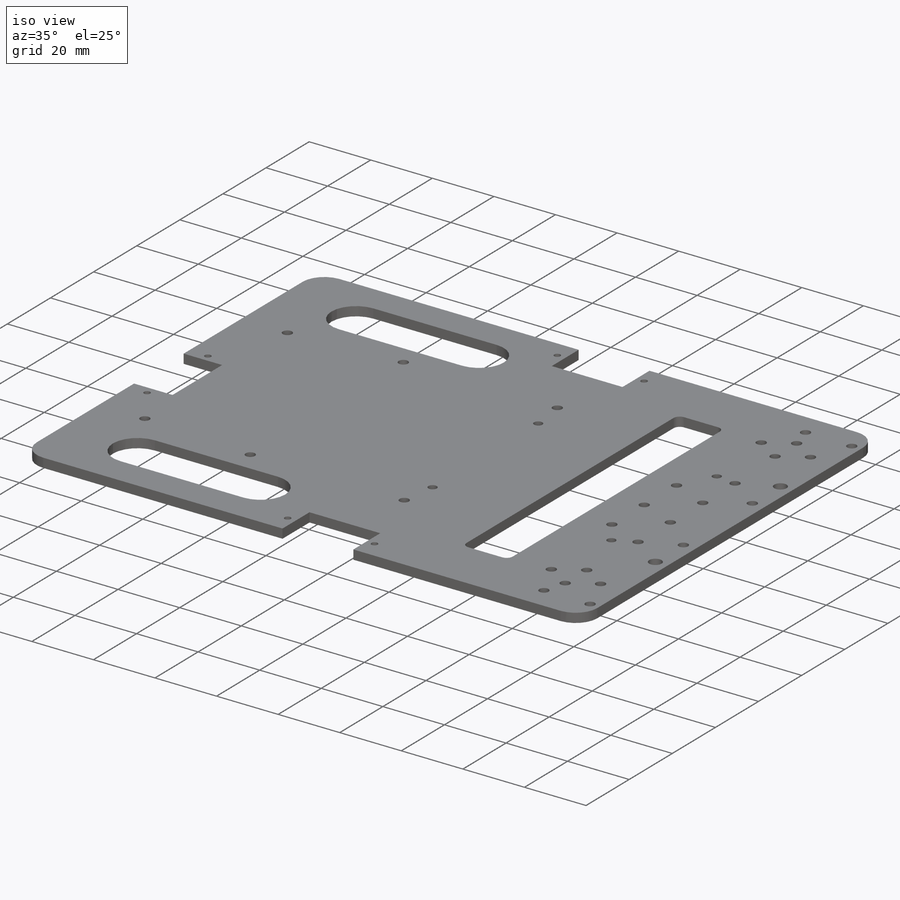
[diagram: iso view]
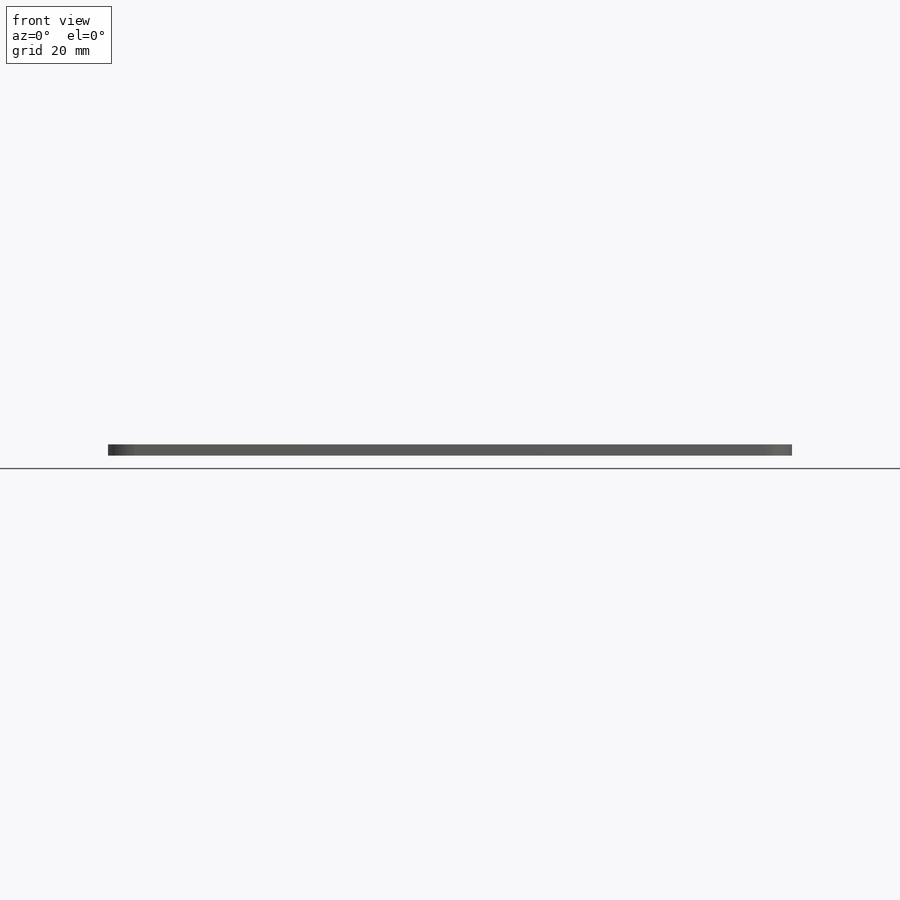
[diagram: front view]
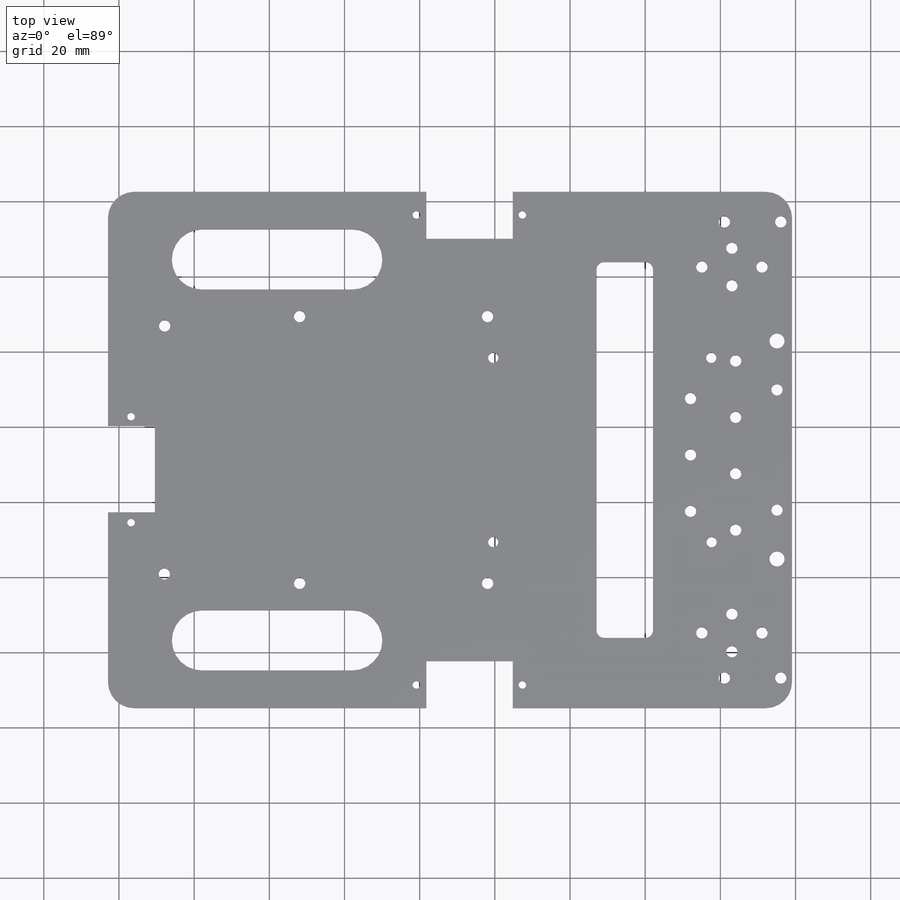
[diagram: top view]
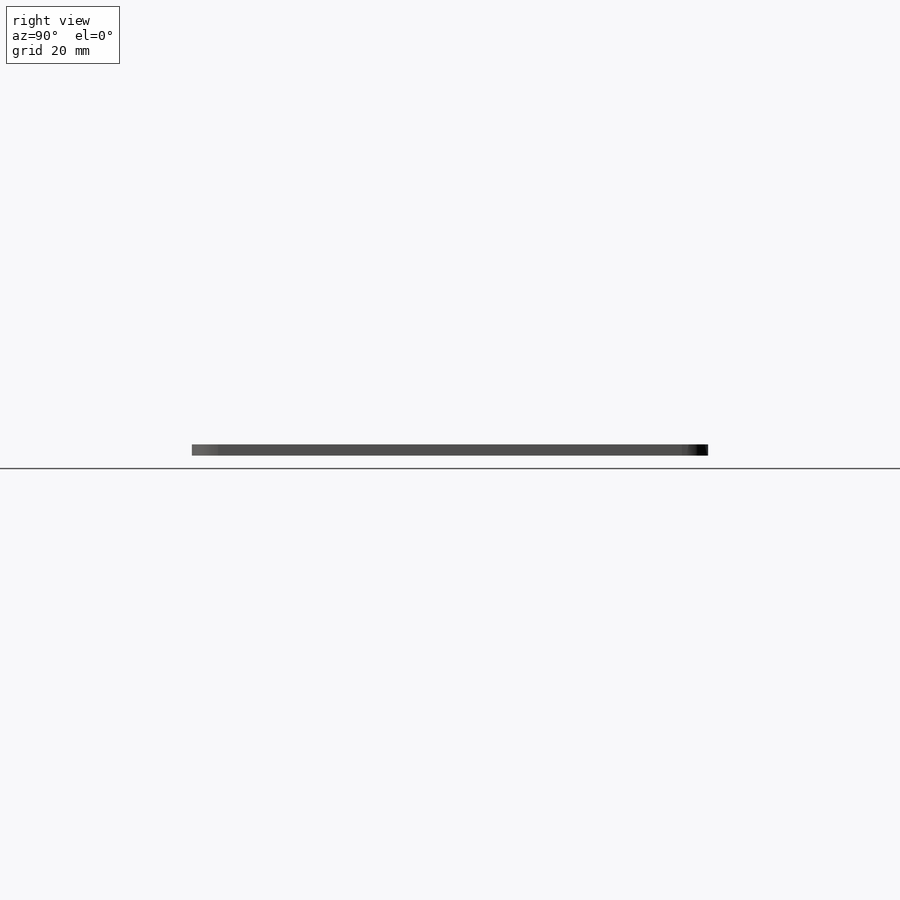
[diagram: right view]
SOLIDWORKS PART (.sldprt)
format: sldprt  version: not decoded by parser v0  size: 572,416 bytes
history: native  units: mm
features: sketch x13, cut_extrude x12, material x1, extrude x1, fillet x1 (+13 scaffold rows collapsed)
feature tree (41):
  scaffold x13  (default folders/planes/origin — collapsed)
  material  "Material <not specified>"
  sketch  "Sketch1"  dims[c1.D1=101.0mm c1.D2=182.0mm c2.D1=137.36mm c2.D3=19.5mm c2.D4=0.0mm]
  extrude  "Boss-Extrude1"  Depth=3mm
  sketch  "Sketch2"  dims[c1.D1=3.0mm c1.D2=3.0mm c1.D3=3.0mm c1.D4=3.0mm c1.D5=3.0mm c1.D6=3.0mm c2.D3=52.68mm c2.D4=52.68mm c2.D5=4.0mm c2.D6=4.0mm]
  cut_extrude  "Cut-Extrude1"  [1 undecoded]
  sketch  "Sketch3"  dims[c1.D1=2.0mm c1.D2=2.0mm c1.D3=2.0mm c1.D6=2.0mm c2.D2=6.14mm c2.D3=71.74mm c2.D6=6.14mm c2.D4=2.0 c2.D5=2.0]
  cut_extrude  "Cut-Extrude2"  [1 undecoded]
  sketch  "Sketch4"  dims[c1.D1=84.85mm c1.D2=23.0mm c2.D1=84.7mm c2.D3=12.5mm c2.D4=12.5mm c2.D5=84.7mm c2.D6=23.0mm c2.D7=12.5mm]
  cut_extrude  "Cut-Extrude3"  [1 undecoded]
  sketch  "Sketch5"  dims[D1=2.7mm D2=2.7mm D3=2.7mm D4=2.7mm]
  cut_extrude  "Cut-Extrude4"  [1 undecoded]
  sketch  "Sketch6"
  cut_extrude  "Cut-Extrude5"  [1 undecoded]
  sketch  "Sketch7"  dims[c1.D9=8.0mm c1.D10=8.0mm c1.D17=7.0mm c1.D6=2.0mm c1.D7=2.0mm c1.D8=2.0mm c2.D17=2.0mm c2.D1=15.0mm c2.D2=5.0mm c2.D3=15.0mm c2.D4=15.0mm c2.D5=10.0mm c2.D6=10.0mm c2.D7=15.0mm c2.D8=15.0mm c2.D11=10.0mm c2.D12=10.0mm c2.D13=40.0mm c2.D14=40.0mm c2.D15=25.0mm c2.D16=25.0mm c3.D2=37.0mm c3.D3=103.36mm c4.D2=37.0mm c4.D3=15.0mm c4.D4=100.0mm c4.D5=18.68mm c4.D6=18.68mm]
  cut_extrude  "Cut-Extrude6"  [1 undecoded]
  fillet  "Fillet1"  Radius=7mm
  sketch  "Sketch10"
  cut_extrude  "Cut-Extrude9"  [1 undecoded]
  sketch  "Sketch11"  dims[D1=3.0mm D2=3.0mm]
  cut_extrude  "Cut-Extrude10"  [1 undecoded]
  sketch  "Sketch13"  dims[c1.D1=23.0mm c1.D2=12.5mm c1.D3=61.68mm c1.D4=75.68mm c2.D3=73.76mm c2.D4=68.68mm]
  cut_extrude  "Cut-Extrude11"  [1 undecoded]
  sketch  "Sketch14"  dims[D1=2.0mm D2=2.0mm]
  cut_extrude  "Cut-Extrude12"  [1 undecoded]
  sketch  "Sketch15"
  cut_extrude  "Cut-Extrude13"  [1 undecoded]
  sketch  "Sketch16"  dims[c1.D1=~2.344739mm c1.D2=~3.800245mm c1.D3=~4.726506mm c1.D4=~7.078136mm c1.D5=3.0mm c1.D6=3.0mm c1.D7=3.0mm c1.D8=3.0mm c1.D10=3.0mm c1.D11=3.0mm c1.D12=3.0mm c1.D13=3.0mm c1.D14=3.0mm c1.D15=3.0mm c1.D16=3.0mm c1.D17=3.0mm c1.D18=3.0mm c1.D19=3.0mm c1.D20=3.0mm c1.D21=3.0mm c1.D22=3.0mm c1.D23=3.0mm c1.D24=3.0mm c1.D25=3.0mm c1.D26=3.0mm c1.D27=3.0mm c1.D28=3.0mm c1.D29=3.0mm c1.D30=3.0mm c1.D31=3.0mm c1.D32=3.0mm c1.D34=3.0mm c1.D35=3.0mm c1.D36=3.0mm c1.D37=3.0mm c1.D38=3.0mm c1.D39=3.0mm c1.D40=3.0mm c1.D41=3.0mm c1.D42=3.0mm c1.D43=~3.958861mm c1.D44=3.0mm c1.D45=3.0mm c2.D1=15.0mm c2.D2=20.0mm c2.D3=20.0mm c2.D4=25.0mm c2.D9=8.0mm c2.D10=16.0mm c2.D11=16.0mm c2.D12=24.0mm c2.D17=15.0mm c2.D18=20.0mm c2.D19=20.0mm c2.D20=25.0mm c2.D21=8.0mm c2.D22=16.0mm c2.D23=16.0mm c2.D24=24.0mm c2.D31=15.0mm c2.D32=15.0mm c2.D33=15.0mm c2.D34=10.0mm c2.D35=10.0mm c2.D36=10.0mm c2.D37=15.0mm c2.D38=15.0mm c2.D39=15.0mm c2.D40=15.0mm c2.D41=45.0mm c2.D42=55.0mm c2.D43=15.0mm c2.D45=15.0mm]
  cut_extrude  "Cut-Extrude14"  [1 undecoded]
decode coverage: 12 of 27 modeling features carry decoded parameters
note: ~ marks probable driven/reference dimensions
note: 12 parameter values undecoded
summary: no parameter record found for 12 features
note: suppression state not decoded; provenance and decode notes live in map.json
